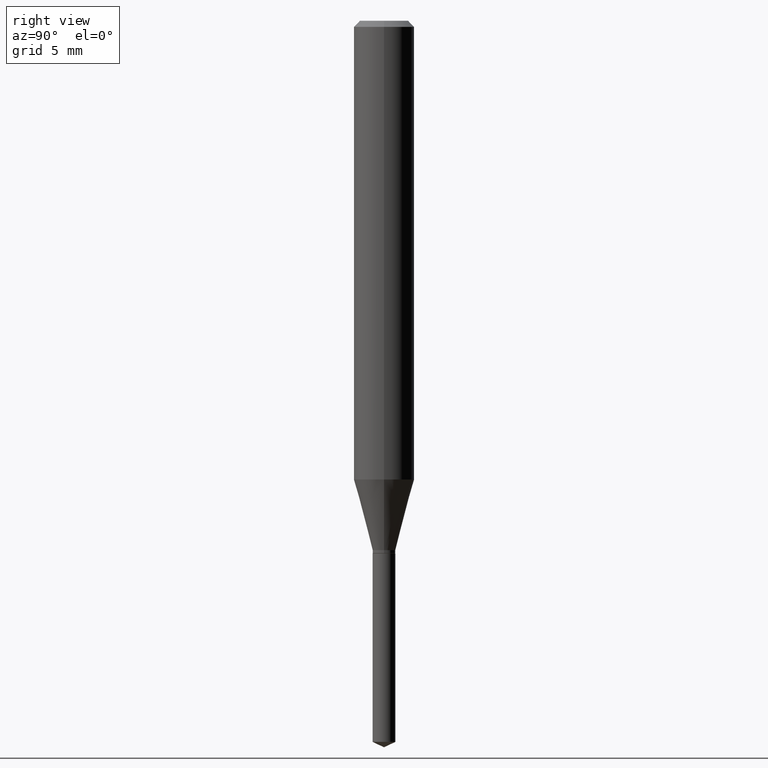
[diagram: clean part render]
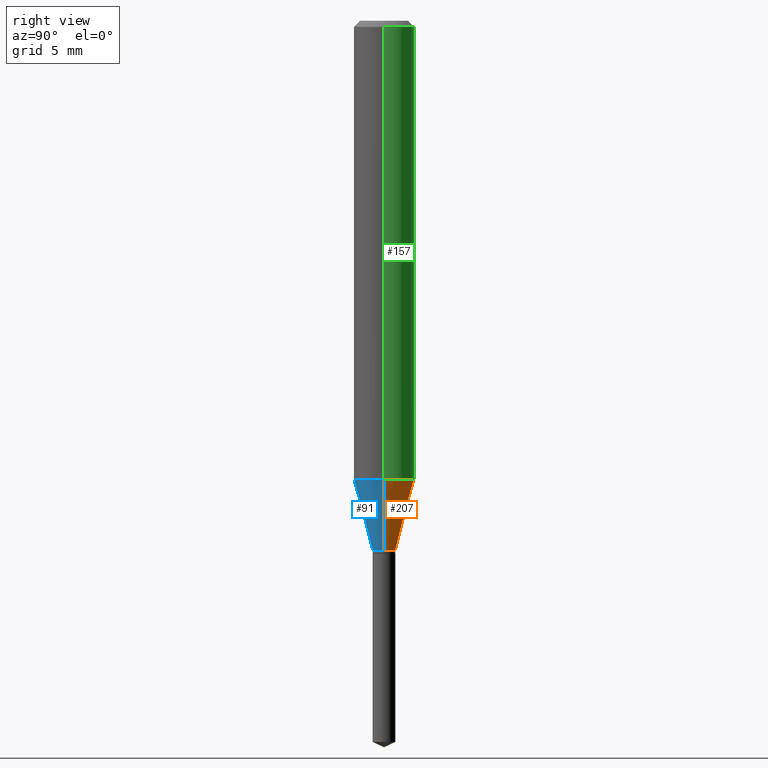
[diagram: same view with three faces highlighted in distinct colors, each labeled with its STEP entity id]
A machine part, right view with three faces highlighted in distinct colors.
Their STEP definitions:

[orange] entity #207 — the highlighted conical surface has half-angle 15 deg.
#11 = CARTESIAN_POINT ( 'NONE',  ( 0.02344999999999999862, -3.979939578147301608E-15, -1.092999999999999972 ) ) ;
#35 = CARTESIAN_POINT ( 'NONE',  ( 0.06250000000000012490, -3.743787707164031297E-15, -0.9472634159644353069 ) ) ;
#38 = CARTESIAN_POINT ( 'NONE',  ( 2.316503134981402038E-29, -3.307352539808638444E-15, -0.9472634159644353069 ) ) ;
#43 = DIRECTION ( 'NONE',  ( 1.000000000000000000, -6.982962677686277755E-15, 0.000000000000000000 ) ) ;
#54 = DIRECTION ( 'NONE',  ( -2.445468806185136597E-29, 3.491481338843145583E-15, 1.000000000000000000 ) ) ;
#56 = DIRECTION ( 'NONE',  ( 1.000000000000000000, -6.982962677686277755E-15, 0.000000000000000000 ) ) ;
#60 = VECTOR ( 'NONE', #391, 39.37007874015747433 ) ;
#63 = VERTEX_POINT ( 'NONE', #35 ) ;
#81 = CARTESIAN_POINT ( 'NONE',  ( -0.06250000000000012490, -2.863263329958574645E-15, -0.9472634159644353069 ) ) ;
#82 = VECTOR ( 'NONE', #416, 39.37007874015747433 ) ;
#108 = AXIS2_PLACEMENT_3D ( 'NONE', #38, #190, #337 ) ;
#131 = FACE_OUTER_BOUND ( 'NONE', #371, .T. ) ;
#139 = VERTEX_POINT ( 'NONE', #413 ) ;
#165 = LINE ( 'NONE', #11, #60 ) ;
#180 = EDGE_CURVE ( 'NONE', #63, #183, #471, .T. ) ;
#183 = VERTEX_POINT ( 'NONE', #81 ) ;
#190 = DIRECTION ( 'NONE',  ( -2.445468806185136597E-29, 3.491481338843145583E-15, 1.000000000000000000 ) ) ;
#207 = ADVANCED_FACE ( 'NONE', ( #131 ), #296, .T. ) ;
#216 = VERTEX_POINT ( 'NONE', #276 ) ;
#222 = CARTESIAN_POINT ( 'NONE',  ( 2.672897405160354511E-29, -3.816189103355558263E-15, -1.092999999999999972 ) ) ;
#251 = EDGE_CURVE ( 'NONE', #139, #63, #165, .T. ) ;
#253 = CIRCLE ( 'NONE', #266, 0.02344999999999999862 ) ;
#266 = AXIS2_PLACEMENT_3D ( 'NONE', #222, #412, #43 ) ;
#276 = CARTESIAN_POINT ( 'NONE',  ( -0.02344999999999999862, -3.660914146171055144E-15, -1.092999999999999972 ) ) ;
#278 = LINE ( 'NONE', #344, #82 ) ;
#296 = CONICAL_SURFACE ( 'NONE', #361, 0.02344999999999999862, 0.2617993877991500740 ) ;
#336 = ORIENTED_EDGE ( 'NONE', *, *, #402, .T. ) ;
#337 = DIRECTION ( 'NONE',  ( 1.000000000000000000, -6.982962677686264344E-15, 0.000000000000000000 ) ) ;
#344 = CARTESIAN_POINT ( 'NONE',  ( -0.02344999999999999862, -3.649566831819814976E-15, -1.092999999999999972 ) ) ;
#353 = CARTESIAN_POINT ( 'NONE',  ( 2.672897405160354511E-29, -3.816189103355558263E-15, -1.092999999999999972 ) ) ;
#361 = AXIS2_PLACEMENT_3D ( 'NONE', #353, #54, #56 ) ;
#363 = ORIENTED_EDGE ( 'NONE', *, *, #251, .F. ) ;
#371 = EDGE_LOOP ( 'NONE', ( #486, #336, #377, #363 ) ) ;
#377 = ORIENTED_EDGE ( 'NONE', *, *, #180, .F. ) ;
#391 = DIRECTION ( 'NONE',  ( 0.2588190451025213501, 1.565188264969621968E-15, 0.9659258262890682012 ) ) ;
#402 = EDGE_CURVE ( 'NONE', #216, #183, #278, .T. ) ;
#412 = DIRECTION ( 'NONE',  ( -2.445468806185136597E-29, 3.491481338843145583E-15, 1.000000000000000000 ) ) ;
#413 = CARTESIAN_POINT ( 'NONE',  ( 0.02344999999999999862, -3.979939578147301608E-15, -1.092999999999999972 ) ) ;
#416 = DIRECTION ( 'NONE',  ( -0.2588190451025213501, 5.211531920934551042E-15, 0.9659258262890682012 ) ) ;
#436 = EDGE_CURVE ( 'NONE', #139, #216, #253, .T. ) ;
#471 = CIRCLE ( 'NONE', #108, 0.06250000000000012490 ) ;
#486 = ORIENTED_EDGE ( 'NONE', *, *, #436, .T. ) ;

[blue] entity #91 — the highlighted conical surface has half-angle 15 deg.
#11 = CARTESIAN_POINT ( 'NONE',  ( 0.02344999999999999862, -3.979939578147301608E-15, -1.092999999999999972 ) ) ;
#17 = AXIS2_PLACEMENT_3D ( 'NONE', #354, #282, #168 ) ;
#22 = ORIENTED_EDGE ( 'NONE', *, *, #402, .F. ) ;
#30 = CONICAL_SURFACE ( 'NONE', #134, 0.02344999999999999862, 0.2617993877991500740 ) ;
#35 = CARTESIAN_POINT ( 'NONE',  ( 0.06250000000000012490, -3.743787707164031297E-15, -0.9472634159644353069 ) ) ;
#44 = DIRECTION ( 'NONE',  ( 1.000000000000000000, -6.982962677686277755E-15, 0.000000000000000000 ) ) ;
#60 = VECTOR ( 'NONE', #391, 39.37007874015747433 ) ;
#63 = VERTEX_POINT ( 'NONE', #35 ) ;
#74 = EDGE_CURVE ( 'NONE', #216, #139, #248, .T. ) ;
#81 = CARTESIAN_POINT ( 'NONE',  ( -0.06250000000000012490, -2.863263329958574645E-15, -0.9472634159644353069 ) ) ;
#82 = VECTOR ( 'NONE', #416, 39.37007874015747433 ) ;
#91 = ADVANCED_FACE ( 'NONE', ( #268 ), #30, .T. ) ;
#110 = DIRECTION ( 'NONE',  ( -2.445468806185136597E-29, 3.491481338843145583E-15, 1.000000000000000000 ) ) ;
#117 = CARTESIAN_POINT ( 'NONE',  ( 2.672897405160354511E-29, -3.816189103355558263E-15, -1.092999999999999972 ) ) ;
#134 = AXIS2_PLACEMENT_3D ( 'NONE', #156, #410, #44 ) ;
#139 = VERTEX_POINT ( 'NONE', #413 ) ;
#144 = ORIENTED_EDGE ( 'NONE', *, *, #74, .T. ) ;
#156 = CARTESIAN_POINT ( 'NONE',  ( 2.672897405160354511E-29, -3.816189103355558263E-15, -1.092999999999999972 ) ) ;
#165 = LINE ( 'NONE', #11, #60 ) ;
#168 = DIRECTION ( 'NONE',  ( 1.000000000000000000, -6.982962677686264344E-15, 0.000000000000000000 ) ) ;
#183 = VERTEX_POINT ( 'NONE', #81 ) ;
#216 = VERTEX_POINT ( 'NONE', #276 ) ;
#229 = CIRCLE ( 'NONE', #17, 0.06250000000000012490 ) ;
#248 = CIRCLE ( 'NONE', #327, 0.02344999999999999862 ) ;
#251 = EDGE_CURVE ( 'NONE', #139, #63, #165, .T. ) ;
#268 = FACE_OUTER_BOUND ( 'NONE', #448, .T. ) ;
#276 = CARTESIAN_POINT ( 'NONE',  ( -0.02344999999999999862, -3.660914146171055144E-15, -1.092999999999999972 ) ) ;
#278 = LINE ( 'NONE', #344, #82 ) ;
#282 = DIRECTION ( 'NONE',  ( -2.445468806185136597E-29, 3.491481338843145583E-15, 1.000000000000000000 ) ) ;
#288 = EDGE_CURVE ( 'NONE', #183, #63, #229, .T. ) ;
#295 = ORIENTED_EDGE ( 'NONE', *, *, #288, .F. ) ;
#327 = AXIS2_PLACEMENT_3D ( 'NONE', #117, #110, #408 ) ;
#334 = ORIENTED_EDGE ( 'NONE', *, *, #251, .T. ) ;
#344 = CARTESIAN_POINT ( 'NONE',  ( -0.02344999999999999862, -3.649566831819814976E-15, -1.092999999999999972 ) ) ;
#354 = CARTESIAN_POINT ( 'NONE',  ( 2.316503134981402038E-29, -3.307352539808638444E-15, -0.9472634159644353069 ) ) ;
#391 = DIRECTION ( 'NONE',  ( 0.2588190451025213501, 1.565188264969621968E-15, 0.9659258262890682012 ) ) ;
#402 = EDGE_CURVE ( 'NONE', #216, #183, #278, .T. ) ;
#408 = DIRECTION ( 'NONE',  ( 1.000000000000000000, -6.982962677686277755E-15, 0.000000000000000000 ) ) ;
#410 = DIRECTION ( 'NONE',  ( -2.445468806185136597E-29, 3.491481338843145583E-15, 1.000000000000000000 ) ) ;
#413 = CARTESIAN_POINT ( 'NONE',  ( 0.02344999999999999862, -3.979939578147301608E-15, -1.092999999999999972 ) ) ;
#416 = DIRECTION ( 'NONE',  ( -0.2588190451025213501, 5.211531920934551042E-15, 0.9659258262890682012 ) ) ;
#448 = EDGE_LOOP ( 'NONE', ( #22, #144, #334, #295 ) ) ;

[green] entity #157 — the highlighted cylindrical surface (edge-blend (fillet) strip) has radius 1.5875 mm, axis along (-0, 0, 1).
#35 = CARTESIAN_POINT ( 'NONE',  ( 0.06250000000000012490, -3.743787707164031297E-15, -0.9472634159644353069 ) ) ;
#38 = CARTESIAN_POINT ( 'NONE',  ( 2.316503134981402038E-29, -3.307352539808638444E-15, -0.9472634159644353069 ) ) ;
#63 = VERTEX_POINT ( 'NONE', #35 ) ;
#69 = CIRCLE ( 'NONE', #368, 0.06250000000000001388 ) ;
#70 = VECTOR ( 'NONE', #130, 39.37007874015748143 ) ;
#75 = CYLINDRICAL_SURFACE ( 'NONE', #433, 0.06250000000000006939 ) ;
#81 = CARTESIAN_POINT ( 'NONE',  ( -0.06250000000000012490, -2.863263329958574645E-15, -0.9472634159644353069 ) ) ;
#87 = LINE ( 'NONE', #237, #370 ) ;
#108 = AXIS2_PLACEMENT_3D ( 'NONE', #38, #190, #337 ) ;
#129 = LINE ( 'NONE', #401, #70 ) ;
#130 = DIRECTION ( 'NONE',  ( -2.445468806185136877E-29, 3.491481338843145188E-15, 1.000000000000000000 ) ) ;
#149 = FACE_OUTER_BOUND ( 'NONE', #404, .T. ) ;
#152 = DIRECTION ( 'NONE',  ( -2.445468806185136597E-29, 3.491481338843145583E-15, 1.000000000000000000 ) ) ;
#154 = EDGE_CURVE ( 'NONE', #475, #220, #69, .T. ) ;
#157 = ADVANCED_FACE ( 'NONE', ( #149 ), #75, .T. ) ;
#180 = EDGE_CURVE ( 'NONE', #63, #183, #471, .T. ) ;
#183 = VERTEX_POINT ( 'NONE', #81 ) ;
#187 = CARTESIAN_POINT ( 'NONE',  ( 3.056836007731442729E-31, -4.364351673553962300E-17, -0.01250000000000008916 ) ) ;
#190 = DIRECTION ( 'NONE',  ( -2.445468806185136597E-29, 3.491481338843145583E-15, 1.000000000000000000 ) ) ;
#192 = ORIENTED_EDGE ( 'NONE', *, *, #364, .T. ) ;
#206 = CARTESIAN_POINT ( 'NONE',  ( -0.06250000000000001388, -1.231408818422025401E-15, -0.01250000000000008916 ) ) ;
#219 = DIRECTION ( 'NONE',  ( 1.000000000000000000, -6.982962677686265922E-15, 0.000000000000000000 ) ) ;
#220 = VERTEX_POINT ( 'NONE', #206 ) ;
#236 = CARTESIAN_POINT ( 'NONE',  ( 0.06250000000000001388, -4.800786840909313294E-16, -0.01250000000000008916 ) ) ;
#237 = CARTESIAN_POINT ( 'NONE',  ( 0.06250000000000006939, -4.364351673553921624E-16, 3.047610484872463374E-30 ) ) ;
#255 = DIRECTION ( 'NONE',  ( -2.445468806185136597E-29, 3.491481338843145583E-15, 1.000000000000000000 ) ) ;
#331 = ORIENTED_EDGE ( 'NONE', *, *, #154, .F. ) ;
#332 = EDGE_CURVE ( 'NONE', #63, #475, #87, .T. ) ;
#337 = DIRECTION ( 'NONE',  ( 1.000000000000000000, -6.982962677686264344E-15, 0.000000000000000000 ) ) ;
#364 = EDGE_CURVE ( 'NONE', #183, #220, #129, .T. ) ;
#368 = AXIS2_PLACEMENT_3D ( 'NONE', #187, #255, #219 ) ;
#370 = VECTOR ( 'NONE', #428, 39.37007874015748143 ) ;
#378 = DIRECTION ( 'NONE',  ( 1.000000000000000000, -6.982962677686266711E-15, 4.876176775795935793E-29 ) ) ;
#401 = CARTESIAN_POINT ( 'NONE',  ( -0.06250000000000006939, 4.440892098500631092E-16, -3.074334431409319267E-30 ) ) ;
#403 = ORIENTED_EDGE ( 'NONE', *, *, #180, .T. ) ;
#404 = EDGE_LOOP ( 'NONE', ( #403, #192, #331, #477 ) ) ;
#428 = DIRECTION ( 'NONE',  ( -2.445468806185136877E-29, 3.491481338843145188E-15, 1.000000000000000000 ) ) ;
#433 = AXIS2_PLACEMENT_3D ( 'NONE', #482, #152, #378 ) ;
#471 = CIRCLE ( 'NONE', #108, 0.06250000000000012490 ) ;
#475 = VERTEX_POINT ( 'NONE', #236 ) ;
#477 = ORIENTED_EDGE ( 'NONE', *, *, #332, .F. ) ;
#482 = CARTESIAN_POINT ( 'NONE',  ( 0.000000000000000000, 0.000000000000000000, 0.000000000000000000 ) ) ;